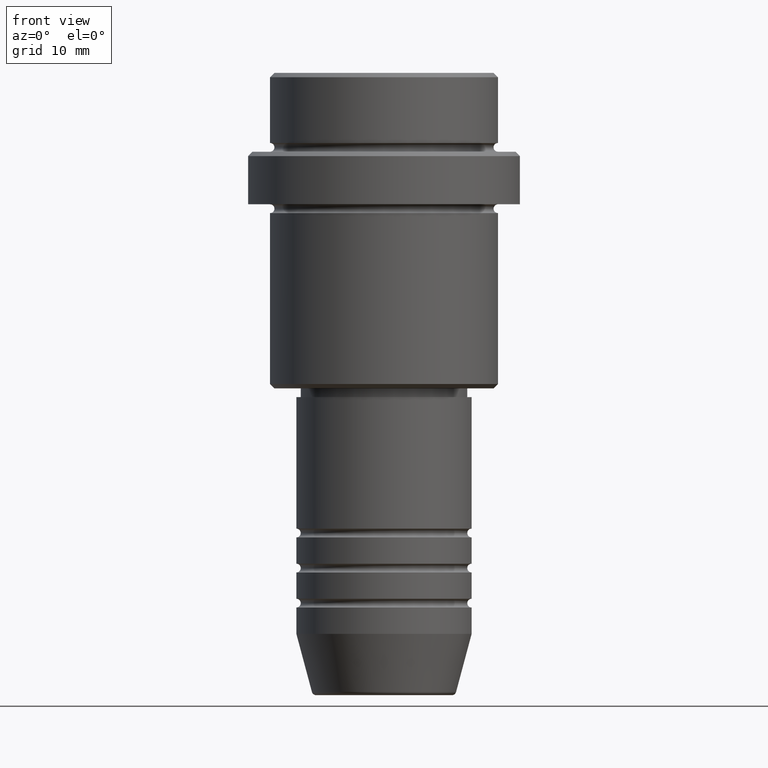
[diagram: clean part render]
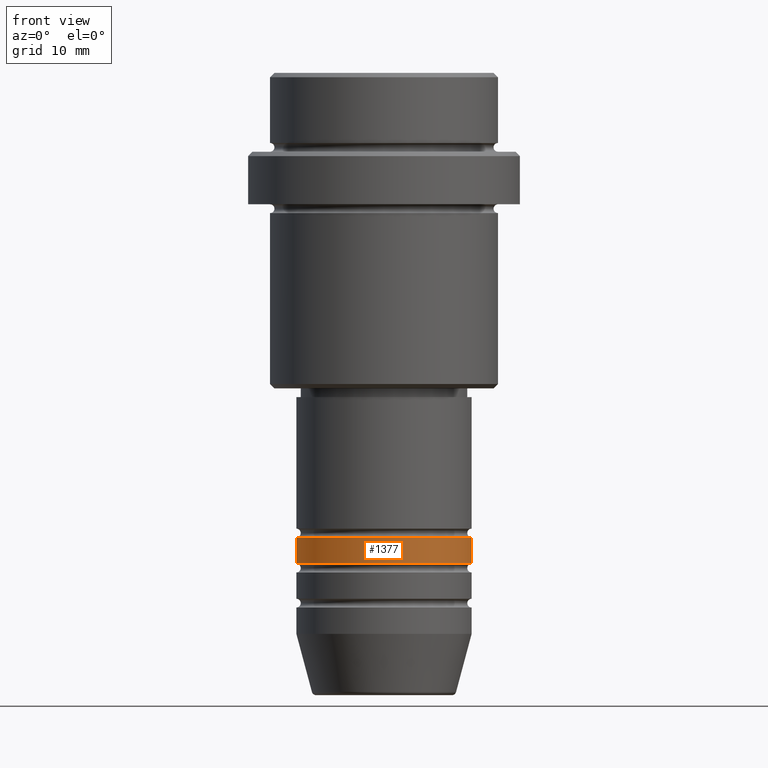
[diagram: same view with one face highlighted and labeled with its STEP entity id]
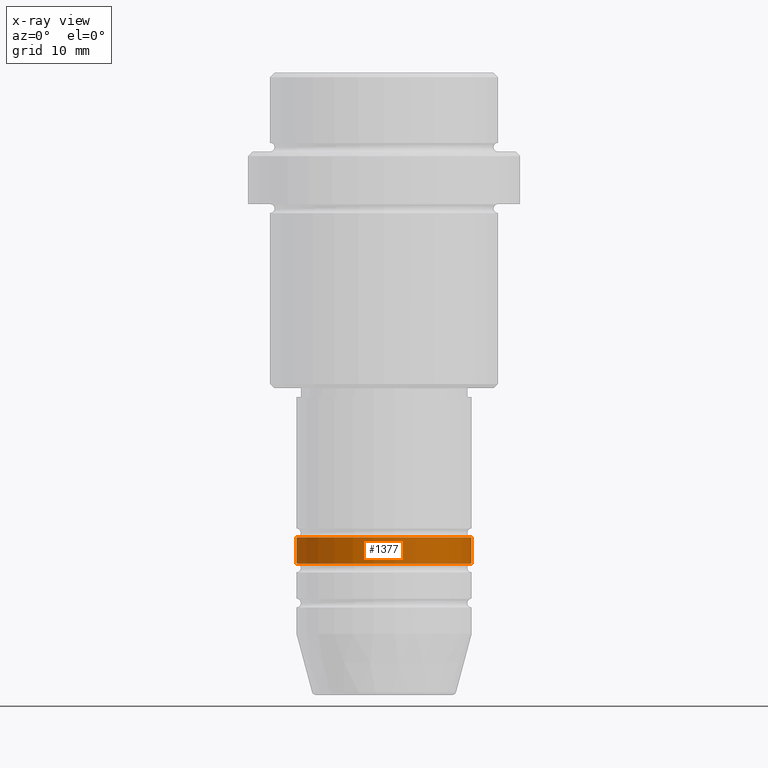
[diagram: x-ray of the same camera — body ghosted, the highlighted face saturated]
A machine part, front view. The second image highlights one B-rep face of the part: STEP entity #1377.
The next image is the same camera in x-ray: the body ghosted, the highlighted face saturated — about 0% of this face is hidden behind the body in this view.
In plain terms, the highlighted cylindrical surface (partial cylindrical patch) has radius 10 mm, axis along (-0, -0, 1).
Its self-contained STEP definition (entity closure, byte-faithful):
#108 = DIRECTION ( 'NONE',  ( -0.000000000000000000, -0.000000000000000000, 1.000000000000000000 ) ) ;
#121 = VERTEX_POINT ( 'NONE', #783 ) ;
#156 = EDGE_CURVE ( 'NONE', #344, #121, #168, .T. ) ;
#168 = CIRCLE ( 'NONE', #1248, 10.00000000000000000 ) ;
#183 = ORIENTED_EDGE ( 'NONE', *, *, #489, .T. ) ;
#272 = VERTEX_POINT ( 'NONE', #659 ) ;
#295 = CARTESIAN_POINT ( 'NONE',  ( 0.000000000000000000, 0.000000000000000000, -52.99999999999988631 ) ) ;
#344 = VERTEX_POINT ( 'NONE', #481 ) ;
#481 = CARTESIAN_POINT ( 'NONE',  ( -10.00000000000000000, 1.224646799147353256E-15, -55.99999999999989342 ) ) ;
#489 = EDGE_CURVE ( 'NONE', #121, #1177, #1404, .T. ) ;
#490 = AXIS2_PLACEMENT_3D ( 'NONE', #511, #1052, #493 ) ;
#493 = DIRECTION ( 'NONE',  ( 1.000000000000000000, 0.000000000000000000, 0.000000000000000000 ) ) ;
#494 = DIRECTION ( 'NONE',  ( 1.000000000000000000, 0.000000000000000000, 0.000000000000000000 ) ) ;
#511 = CARTESIAN_POINT ( 'NONE',  ( 0.000000000000000000, 0.000000000000000000, 0.000000000000000000 ) ) ;
#542 = ORIENTED_EDGE ( 'NONE', *, *, #156, .T. ) ;
#589 = ORIENTED_EDGE ( 'NONE', *, *, #918, .F. ) ;
#607 = DIRECTION ( 'NONE',  ( -0.000000000000000000, -0.000000000000000000, 1.000000000000000000 ) ) ;
#655 = ORIENTED_EDGE ( 'NONE', *, *, #985, .F. ) ;
#659 = CARTESIAN_POINT ( 'NONE',  ( -10.00000000000000000, 1.224646799147353256E-15, -52.99999999999988631 ) ) ;
#728 = DIRECTION ( 'NONE',  ( -0.000000000000000000, -0.000000000000000000, 1.000000000000000000 ) ) ;
#729 = CYLINDRICAL_SURFACE ( 'NONE', #490, 10.00000000000000000 ) ;
#783 = CARTESIAN_POINT ( 'NONE',  ( 10.00000000000000000, 0.000000000000000000, -55.99999999999989342 ) ) ;
#833 = FACE_OUTER_BOUND ( 'NONE', #1127, .T. ) ;
#855 = DIRECTION ( 'NONE',  ( -0.000000000000000000, -0.000000000000000000, 1.000000000000000000 ) ) ;
#862 = AXIS2_PLACEMENT_3D ( 'NONE', #295, #607, #494 ) ;
#918 = EDGE_CURVE ( 'NONE', #272, #1177, #1138, .T. ) ;
#965 = CARTESIAN_POINT ( 'NONE',  ( 0.000000000000000000, 0.000000000000000000, -55.99999999999989342 ) ) ;
#985 = EDGE_CURVE ( 'NONE', #344, #272, #1267, .T. ) ;
#1019 = VECTOR ( 'NONE', #728, 1000.000000000000000 ) ;
#1052 = DIRECTION ( 'NONE',  ( -0.000000000000000000, -0.000000000000000000, 1.000000000000000000 ) ) ;
#1127 = EDGE_LOOP ( 'NONE', ( #655, #542, #183, #589 ) ) ;
#1138 = CIRCLE ( 'NONE', #862, 10.00000000000000000 ) ;
#1140 = VECTOR ( 'NONE', #855, 1000.000000000000000 ) ;
#1177 = VERTEX_POINT ( 'NONE', #1258 ) ;
#1198 = DIRECTION ( 'NONE',  ( 1.000000000000000000, 0.000000000000000000, 0.000000000000000000 ) ) ;
#1248 = AXIS2_PLACEMENT_3D ( 'NONE', #965, #108, #1198 ) ;
#1258 = CARTESIAN_POINT ( 'NONE',  ( 10.00000000000000000, 0.000000000000000000, -52.99999999999988631 ) ) ;
#1267 = LINE ( 'NONE', #1287, #1140 ) ;
#1287 = CARTESIAN_POINT ( 'NONE',  ( -10.00000000000000000, 1.224646799147353256E-15, 0.000000000000000000 ) ) ;
#1377 = ADVANCED_FACE ( 'NONE', ( #833 ), #729, .T. ) ;
#1404 = LINE ( 'NONE', #1406, #1019 ) ;
#1406 = CARTESIAN_POINT ( 'NONE',  ( 10.00000000000000000, 0.000000000000000000, 0.000000000000000000 ) ) ;